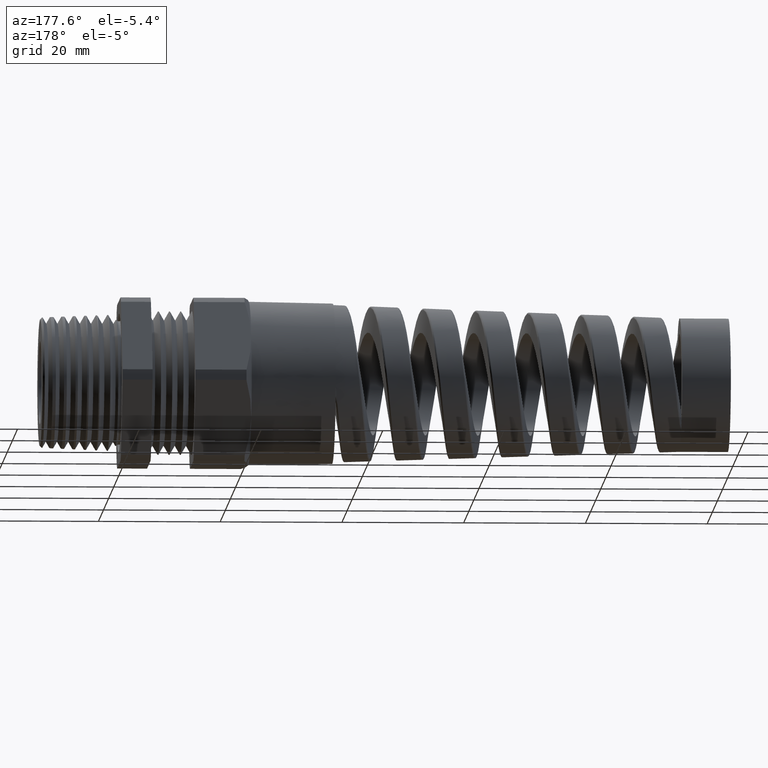
[diagram: clean part render]
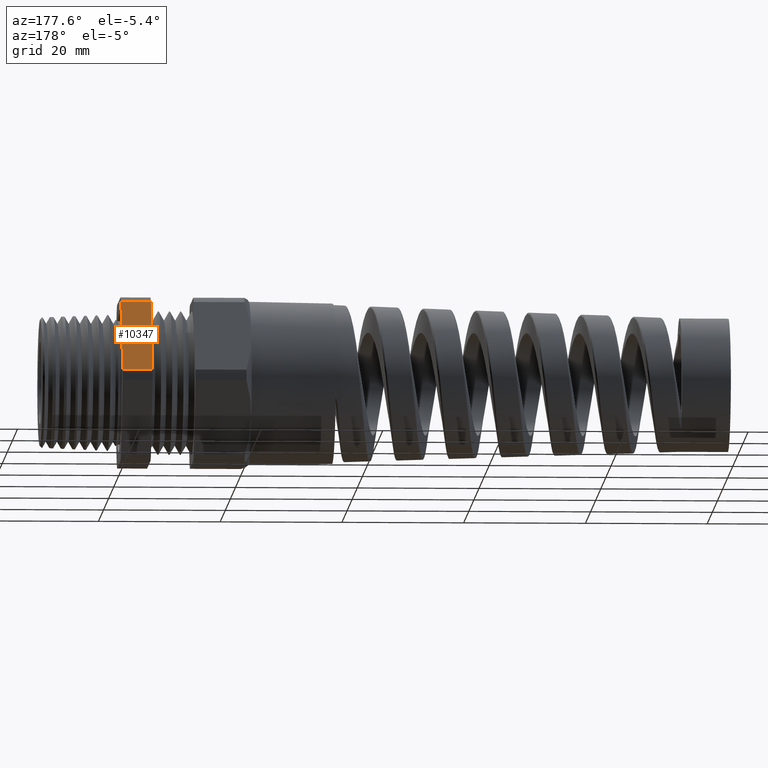
[diagram: same view with one face highlighted and labeled with its STEP entity id]
A machine part, auxiliary view. The second image highlights one B-rep face of the part: STEP entity #10347.
In plain terms, the highlighted planar face has unit normal (0, 0.866, 0.5).
Its self-contained STEP definition (entity closure, byte-faithful):
#5201 = CARTESIAN_POINT ( 'NONE',  ( 0.0000000000000000000, 0.3253325497488162000, 0.4965074944791207400 ) ) ;
#5202 = DIRECTION ( 'NONE',  ( 0.0000000000000000000, -0.5000000000000001100, 0.8660254037844386000 ) ) ;
#5203 = VECTOR ( 'NONE', #5202, 39.37007874015748100 ) ;
#5204 = CARTESIAN_POINT ( 'NONE',  ( 0.0000000000000000000, 0.5926543782626886300, 0.03349250552087932500 ) ) ;
#5205 = LINE ( 'NONE', #5204, #5203 ) ;
#5206 = CARTESIAN_POINT ( 'NONE',  ( 0.0000000000000000000, 0.5926543782626885200, 0.03349250552087933200 ) ) ;
#5734 = CARTESIAN_POINT ( 'NONE',  ( -0.1940298507462685800, 0.3253325497488162000, 0.4965074944791207400 ) ) ;
#5757 = LINE ( 'NONE', #5819, #5818 ) ;
#5758 = CARTESIAN_POINT ( 'NONE',  ( -0.1940298507462687200, 0.5926543782626886300, 0.03349250552087922100 ) ) ;
#5817 = DIRECTION ( 'NONE',  ( 1.000000000000000000, 0.0000000000000000000, 0.0000000000000000000 ) ) ;
#5818 = VECTOR ( 'NONE', #5817, 39.37007874015748100 ) ;
#5819 = CARTESIAN_POINT ( 'NONE',  ( -2.533243884661831900, 0.5926543782626885200, 0.03349250552087933200 ) ) ;
#5879 = DIRECTION ( 'NONE',  ( 0.0000000000000000000, -0.5000000000000001100, 0.8660254037844386000 ) ) ;
#5880 = VECTOR ( 'NONE', #5879, 39.37007874015748100 ) ;
#5881 = CARTESIAN_POINT ( 'NONE',  ( -0.1940298507462687200, 0.5755934640057525100, 0.06304287583746889800 ) ) ;
#5882 = LINE ( 'NONE', #5881, #5880 ) ;
#5913 = DIRECTION ( 'NONE',  ( 1.000000000000000000, 0.0000000000000000000, 0.0000000000000000000 ) ) ;
#5914 = VECTOR ( 'NONE', #5913, 39.37007874015748100 ) ;
#5915 = CARTESIAN_POINT ( 'NONE',  ( -2.533243884661831900, 0.3253325497488162000, 0.4965074944791207400 ) ) ;
#5916 = LINE ( 'NONE', #5915, #5914 ) ;
#5969 = DIRECTION ( 'NONE',  ( 0.0000000000000000000, -0.5000000000000001100, 0.8660254037844386000 ) ) ;
#5970 = DIRECTION ( 'NONE',  ( 0.0000000000000000000, 0.8660254037844386000, 0.5000000000000001100 ) ) ;
#5971 = CARTESIAN_POINT ( 'NONE',  ( -2.533243884661831900, 0.5926543782626886300, 0.03349250552087932500 ) ) ;
#5972 = AXIS2_PLACEMENT_3D ( 'NONE', #5971, #5970, #5969 ) ;
#5973 = PLANE ( 'NONE',  #5972 ) ;
#5974 = FACE_OUTER_BOUND ( 'NONE', #10348, .T. ) ;
#9934 = VERTEX_POINT ( 'NONE', #5206 ) ;
#9936 = EDGE_CURVE ( 'NONE', #9934, #9937, #5205, .T. ) ;
#9937 = VERTEX_POINT ( 'NONE', #5201 ) ;
#10198 = VERTEX_POINT ( 'NONE', #5734 ) ;
#10218 = VERTEX_POINT ( 'NONE', #5758 ) ;
#10220 = EDGE_CURVE ( 'NONE', #10218, #9934, #5757, .T. ) ;
#10260 = EDGE_CURVE ( 'NONE', #10218, #10198, #5882, .T. ) ;
#10278 = EDGE_CURVE ( 'NONE', #10198, #9937, #5916, .T. ) ;
#10329 = ORIENTED_EDGE ( 'NONE', *, *, #10220, .F. ) ;
#10347 = ADVANCED_FACE ( 'NONE', ( #5974 ), #5973, .T. ) ;
#10348 = EDGE_LOOP ( 'NONE', ( #10349, #10350, #10351, #10329 ) ) ;
#10349 = ORIENTED_EDGE ( 'NONE', *, *, #10260, .T. ) ;
#10350 = ORIENTED_EDGE ( 'NONE', *, *, #10278, .T. ) ;
#10351 = ORIENTED_EDGE ( 'NONE', *, *, #9936, .F. ) ;